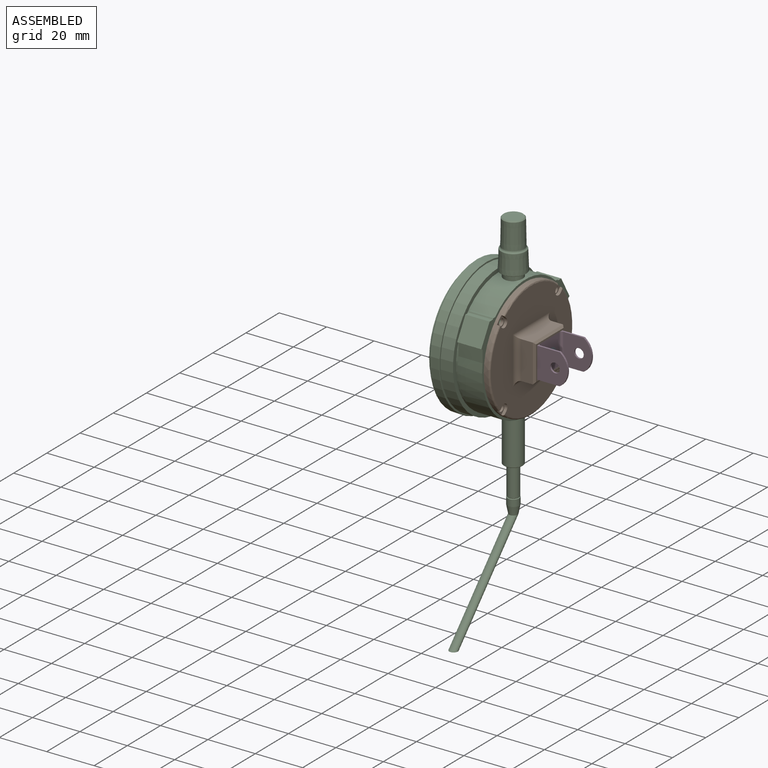
[diagram: assembled view]
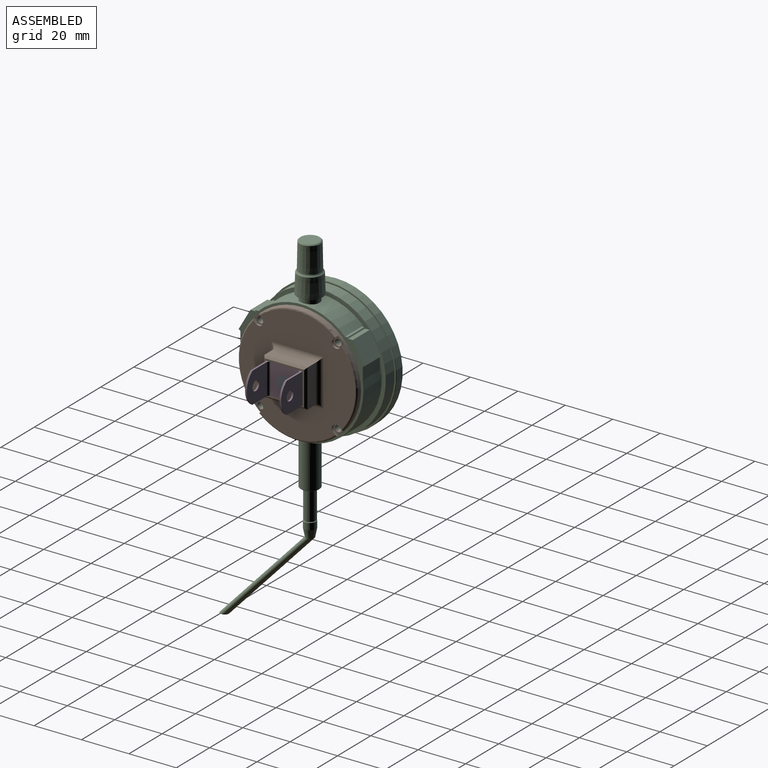
[diagram: assembled view, second angle]
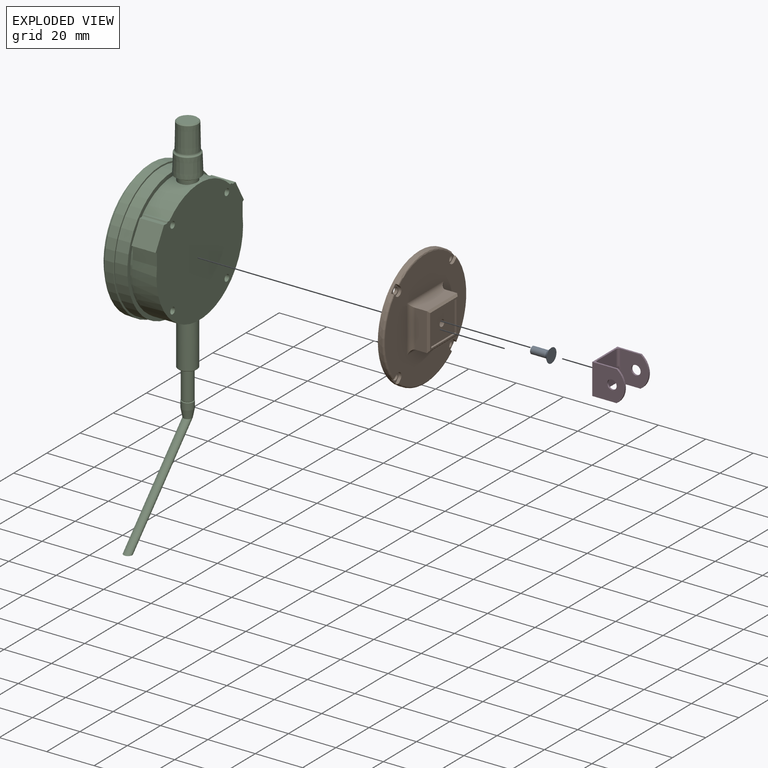
[diagram: exploded view]
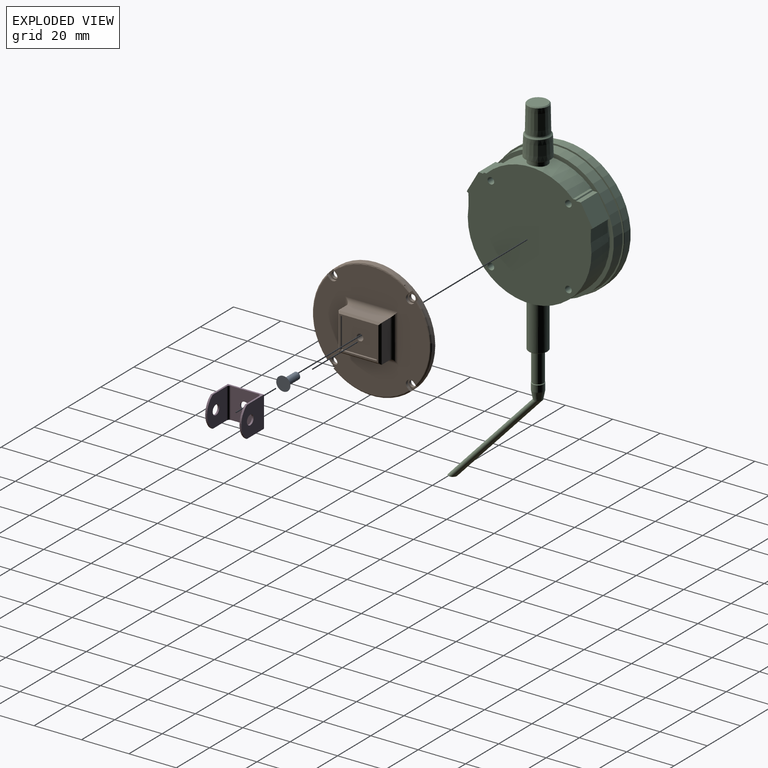
[diagram: exploded view, second angle]
ASSEMBLY  parts=4 mates=3
PART A: 4 faces, bbox 8x6x6 mm
  f0: plane 6x6mm, normal (1,0,0), area 28.3mm2, adj f3
  f1: plane 3x3mm, normal (-1,0,0), area 7.1mm2, adj f2
  f2: cylinder r=1.5mm len=6.5mm, axis (-1,0,0), area 61.3mm2, adj f1,f3
  f3: cone r=3mm half-angle=45deg, axis (1,0,0), area 30mm2, adj f0,f2
PART B: 46 faces, bbox 10.3x54.3x54.3 mm
  f0: plane 48.8x48.8mm, normal (1,0,0), area 1384.7mm2, adj f1,f2,f3,f4,f11,f12,f13,f15
  f1: torus R=24.4mm, axis (-1,0,0), area 38.7mm2, adj f0,f6,f13,f23
  f2: torus R=24.4mm, axis (-1,0,0), area 38.7mm2, adj f0,f6,f19,f25
  f3: torus R=24.4mm, axis (-1,0,0), area 38.7mm2, adj f0,f6,f17,f21
  f4: torus R=24.4mm, axis (-1,0,0), area 38.7mm2, adj f0,f6,f11,f16
  f5: plane 50.2x50.2mm, normal (-1,0,0), area 1948.4mm2, adj f6,f7,f8,f9,f10,f36
  f6: cylinder r=25.1mm len=50.2mm, axis (-1,0,0), area 276.3mm2, adj f1,f2,f3,f4,f5,f11,f13,f14
  f7: cylinder r=1.4mm len=2.8mm, axis (1,0,0), area 11.4mm2, adj f5,f22
  f8: cylinder r=1.4mm len=2.8mm, axis (1,0,0), area 11.4mm2, adj f5,f14
  f9: cylinder r=1.4mm len=2.8mm, axis (1,0,0), area 11.4mm2, adj f5,f26
  f10: cylinder r=1.4mm len=2.8mm, axis (1,0,0), area 11.4mm2, adj f5,f18
  f11: plane 1.35x1.35mm, normal (0,-0.71,-0.71), area 2.2mm2, adj f0,f4,f6,f12,f14
  f12: cylinder r=1.9mm len=3.24mm, axis (1,0,0), area 7.2mm2, adj f0,f11,f13,f14
  f13: plane 1.35x1.35mm, normal (0,0.71,0.71), area 2.2mm2, adj f0,f1,f6,f12,f14
  f14: plane 4.59x4.59mm, normal (1,0,0), area 6.9mm2, adj f6,f8,f11,f12,f13
  f15: cylinder r=1.9mm len=3.24mm, axis (1,0,0), area 7.2mm2, adj f0,f16,f17,f18
  f16: plane 1.35x1.35mm, normal (0,-0.71,0.71), area 2.2mm2, adj f0,f4,f6,f15,f18
  f17: plane 1.35x1.35mm, normal (0,0.71,-0.71), area 2.2mm2, adj f0,f3,f6,f15,f18
  f18: plane 4.59x4.59mm, normal (1,0,0), area 6.9mm2, adj f6,f10,f15,f16,f17
  f19: plane 1.35x1.35mm, normal (0,0.71,0.71), area 2.2mm2, adj f0,f2,f6,f20,f22
  f20: cylinder r=1.9mm len=3.24mm, axis (1,0,0), area 7.2mm2, adj f0,f19,f21,f22
  f21: plane 1.35x1.35mm, normal (0,-0.71,-0.71), area 2.2mm2, adj f0,f3,f6,f20,f22
  f22: plane 4.59x4.59mm, normal (1,0,0), area 6.9mm2, adj f6,f7,f19,f20,f21
  f23: plane 1.35x1.35mm, normal (0,-0.71,0.71), area 2.2mm2, adj f0,f1,f6,f24,f26
  f24: cylinder r=1.9mm len=3.24mm, axis (1,0,0), area 7.2mm2, adj f0,f23,f25,f26
  f25: plane 1.35x1.35mm, normal (0,0.71,-0.71), area 2.2mm2, adj f0,f2,f6,f24,f26
  f26: plane 4.59x4.59mm, normal (1,0,0), area 6.9mm2, adj f6,f9,f23,f24,f25
  f27: plane 15.2x0.8mm, normal (0,0,-1), area 12.2mm2, adj f28,f34,f35,f37
  f28: plane 13x0.8mm, normal (0,-1,0), area 10.4mm2, adj f27,f29,f35,f37
  f29: plane 15.2x0.8mm, normal (0,0,1), area 12.2mm2, adj f28,f34,f35,f37
  f30: plane 18.2x5mm, normal (0,0,-1), area 91mm2, adj f31,f33,f40,f45
  f31: plane 16x5mm, normal (0,1,0), area 80mm2, adj f30,f32,f38,f43
  f32: plane 18.2x5mm, normal (0,0,1), area 91mm2, adj f31,f33,f39,f42
  f33: plane 16x5mm, normal (0,-1,0), area 80mm2, adj f30,f32,f41,f44
  f34: plane 13x0.8mm, normal (0,1,0), area 10.4mm2, adj f27,f29,f35,f37
  f35: plane 16.6x14.4mm, normal (1,0,0), area 41.4mm2, adj f27,f28,f29,f34,f42,f43,f44,f45
  f36: cylinder r=1.4mm len=9.5mm, axis (-1,0,0), area 83.6mm2, adj f5,f37
  f37: plane 15.2x13mm, normal (1,0,0), area 191.4mm2, adj f27,f28,f29,f34,f36
  f38: cylinder r=2mm len=20mm, axis (0,0,-1), area 54.8mm2, adj f0,f31,f39,f40
  f39: cylinder r=2mm len=22.2mm, axis (0,1,0), area 61.7mm2, adj f0,f32,f38,f41
  f40: cylinder r=2mm len=22.2mm, axis (0,-1,0), area 61.7mm2, adj f0,f30,f38,f41
  f41: cylinder r=2mm len=20mm, axis (0,0,1), area 54.8mm2, adj f0,f33,f39,f40
  f42: plane 18.2x0.8mm, normal (0.71,0,0.71), area 19.7mm2, adj f32,f35,f43,f44
  f43: plane 16x0.8mm, normal (0.71,0.71,0), area 17.2mm2, adj f31,f35,f42,f45
  f44: plane 16x0.8mm, normal (0.71,-0.71,0), area 17.2mm2, adj f33,f35,f42,f45
  f45: plane 18.2x0.8mm, normal (0.71,0,-0.71), area 19.7mm2, adj f30,f35,f43,f44
PART C: 68 faces, bbox 24x70.4x152.3 mm
  f0: cylinder r=26mm len=52mm, axis (-1,0,0), area 155.2mm2, adj f1,f55
  f1: plane 53.15x52.2mm, normal (-1,0,0), area 62.8mm2, adj f0,f2,f25,f26,f27,f28,f29,f30
  f2: cylinder r=26.1mm len=52.2mm, axis (1,0,0), area 866.4mm2, adj f1,f3,f12,f25,f54
  f3: plane 53.15x52.2mm, normal (1,0,0), area 2161.8mm2, adj f2,f4,f6,f8,f10,f25,f26,f27
  f4: cylinder r=1.4mm len=3mm, axis (1,0,0), area 26.4mm2, adj f3,f5
  f5: plane 2.8x2.8mm, normal (1,0,0), area 6.2mm2, adj f4
  f6: cylinder r=1.4mm len=3mm, axis (1,0,0), area 26.4mm2, adj f3,f7
  f7: plane 2.8x2.8mm, normal (1,0,0), area 6.2mm2, adj f6
  f8: cylinder r=1.4mm len=3mm, axis (1,0,0), area 26.4mm2, adj f3,f9
  f9: plane 2.8x2.8mm, normal (1,0,0), area 6.2mm2, adj f8
  f10: cylinder r=1.4mm len=3mm, axis (1,0,0), area 26.4mm2, adj f3,f11
  f11: plane 2.8x2.8mm, normal (1,0,0), area 6.2mm2, adj f10
  f12: cylinder r=4mm len=19.1mm, axis (0,0,1), area 480mm2, adj f2,f13
  f13: cone r=4mm half-angle=45deg, axis (0,0,1), area 6.9mm2, adj f12,f14
  f14: plane 7.6x7.6mm, normal (0,0,-1), area 27.3mm2, adj f13,f15
  f15: cylinder r=2.4mm len=12.3mm, axis (0,0,1), area 185.5mm2, adj f14,f16
  f16: cone r=2.4mm half-angle=45deg, axis (0,0,1), area 4.1mm2, adj f15,f17
  f17: plane 4.6x4.6mm, normal (0,0,1), area 1.4mm2, adj f16,f18
  f18: cone r=2.5mm half-angle=45deg, axis (0,0,-1), area 4.3mm2, adj f17,f19
  f19: cylinder r=2.5mm len=5mm, axis (0,0,1), area 44mm2, adj f18,f20
  f20: cone r=1.8mm half-angle=11deg, axis (0,0,1), area 49.5mm2, adj f19,f21
  f21: bspline ~43.24x38.46mm, area 519.5mm2, adj f20,f22
  f22: plane 4.1x4.1mm, normal (0,0,-1), area 5.1mm2, adj f21,f23
  f23: bspline ~41.11x38.46mm, area 366.2mm2, adj f22,f24
  f24: sphere r=1.5mm, area 6.6mm2, adj f23
  f25: plane 10.2x5.2mm, normal (0,1,0), area 53mm2, adj f1,f2,f3,f26
  f26: plane 10.2x0.76mm, normal (0,0.5,-0.87), area 8.9mm2, adj f1,f3,f25,f27
  f27: plane 10.2x8.66mm, normal (0,0.87,0.5), area 102mm2, adj f1,f3,f26,f28
  f28: plane 10.2x1.97mm, normal (0,-0.01,1), area 20.1mm2, adj f1,f3,f27,f29
  f29: plane 10.2x0.46mm, normal (0,0.87,0.5), area 5.5mm2, adj f1,f3,f28,f30
  f30: plane 10.2x1.08mm, normal (0,-0.01,1), area 11mm2, adj f1,f3,f29,f31
  f31: cylinder r=26.1mm len=36.51mm, axis (1,0,0), area 363.4mm2, adj f1,f3,f30,f32,f33,f34,f47,f48
  f32: cone r=3.08mm half-angle=82.2deg, axis (0,0,1), area 0mm2, adj f31,f33
  f33: revolved ~3.87x0.54mm, area 0.2mm2, adj f31,f32,f34
  f34: cylinder r=4mm len=8mm, axis (0,0,1), area 47.6mm2, adj f31,f33,f35,f48
  f35: plane 9x9mm, normal (0,0,-1), area 13.4mm2, adj f34,f36
  f36: cylinder r=4.5mm len=9mm, axis (0,0,1), area 2.8mm2, adj f35,f37
  f37: plane 9.2x9.2mm, normal (0,0,-1), area 2.9mm2, adj f36,f38
  f38: cone r=5.38mm half-angle=60deg, axis (0,0,1), area 28.1mm2, adj f37,f39
  f39: torus R=5.35mm, axis (0,0,1), area 1.7mm2, adj f38,f40
  f40: plane 10.9x10.9mm, normal (0,0,-1), area 1.7mm2, adj f39,f41
  f41: cone r=5.45mm half-angle=2deg, axis (0,0,-1), area 274.7mm2, adj f40,f42
  f42: torus R=4.86mm, axis (0,0,1), area 9.2mm2, adj f41,f43
  f43: torus R=5.57mm, axis (0,0,1), area 29.5mm2, adj f42,f44
  f44: cone r=4.58mm half-angle=1deg, axis (0,0,-1), area 301.3mm2, adj f43,f45
  f45: cone r=4.39mm half-angle=45deg, axis (0,0,-1), area 14.9mm2, adj f44,f46
  f46: plane 7.97x7.97mm, normal (0,0,1), area 49.9mm2, adj f45
  f47: cone r=3.08mm half-angle=82.2deg, axis (0,0,1), area 0mm2, adj f31,f48
  f48: revolved ~3.87x0.54mm, area 0.2mm2, adj f31,f34,f47
  f49: plane 10.2x1.08mm, normal (0,0.01,1), area 11mm2, adj f1,f3,f31,f50
  f50: plane 10.2x0.46mm, normal (0,-0.87,0.5), area 5.5mm2, adj f1,f3,f49,f51
  f51: plane 10.2x1.97mm, normal (0,0.01,1), area 20.1mm2, adj f1,f3,f50,f52
  f52: plane 10.2x8.66mm, normal (0,-0.87,0.5), area 102mm2, adj f1,f3,f51,f53
  f53: plane 10.2x0.76mm, normal (0,-0.5,-0.87), area 8.9mm2, adj f1,f3,f52,f54
  f54: plane 10.2x5.2mm, normal (0,-1,0), area 53mm2, adj f1,f2,f3,f53
  f55: plane 55.41x55.41mm, normal (1,0,0), area 287.6mm2, adj f0,f56
  f56: cone r=27.7mm half-angle=1deg, axis (-1,0,0), area 907.4mm2, adj f55,f57
  f57: plane 56.8x56.8mm, normal (1,0,0), area 107mm2, adj f56,f58
  f58: cone r=28.4mm half-angle=45.5deg, axis (-1,0,0), area 24.7mm2, adj f57,f59
  f59: cone r=28.36mm half-angle=2deg, axis (1,0,0), area 704.5mm2, adj f58,f60
  f60: cone r=27.95mm half-angle=45deg, axis (1,0,0), area 103.2mm2, adj f59,f61
  f61: torus R=27.59mm, axis (-1,0,0), area 68.5mm2, adj f60,f62
  f62: plane 55.19x55.19mm, normal (-1,0,0), area 165.5mm2, adj f61,f63
  f63: cone r=26.32mm half-angle=15deg, axis (1,0,0), area 193.9mm2, adj f62,f64
  f64: torus R=26.22mm, axis (-1,0,0), area 21.6mm2, adj f63,f65
  f65: plane 52.45x52.45mm, normal (-1,0,0), area 69.2mm2, adj f64,f66
  f66: cylinder r=25.8mm len=51.6mm, axis (-1,0,0), area 61.2mm2, adj f65,f67
  f67: plane 51.61x51.61mm, normal (-1,0,0), area 2091.4mm2, adj f66
PART D: 15 faces, bbox 13.7x15.2x13 mm
  f0: plane 13x11.95mm, normal (0,1,0), area 129.6mm2, adj f4,f7,f10,f12,f13
  f1: plane 13x11.95mm, normal (0,-1,0), area 129.6mm2, adj f4,f7,f9,f11,f14
  f2: plane 13.7x13mm, normal (0,1,0), area 152.4mm2, adj f4,f6,f7,f9,f11
  f3: plane 13.7x13mm, normal (0,-1,0), area 152.4mm2, adj f4,f6,f7,f10,f12
  f4: plane 15.2x10.3mm, normal (0,0,1), area 26.2mm2, adj f0,f1,f2,f3,f5,f6,f9,f10
  f5: plane 13x11.7mm, normal (1,0,0), area 139.5mm2, adj f4,f7,f8,f13,f14
  f6: plane 15.2x13mm, normal (-1,0,0), area 185mm2, adj f2,f3,f4,f7,f8
  f7: plane 15.2x10.3mm, normal (0,0,-1), area 26.2mm2, adj f0,f1,f2,f3,f5,f6,f9,f10
  f8: cylinder r=2mm len=4mm, axis (1,0,0), area 9.4mm2, adj f5,f6
  f9: cylinder r=7.91mm len=13mm, axis (0,-1,0), area 11.4mm2, adj f1,f2,f4,f7
  f10: cylinder r=7.91mm len=13mm, axis (0,-1,0), area 11.4mm2, adj f0,f3,f4,f7
  f11: cylinder r=2mm len=4mm, axis (0,-1,0), area 9.4mm2, adj f1,f2
  f12: cylinder r=2mm len=4mm, axis (0,-1,0), area 9.4mm2, adj f0,f3
  f13: cylinder r=1mm len=13mm, axis (0,0,1), area 20.4mm2, adj f0,f4,f5,f7
  f14: cylinder r=1mm len=13mm, axis (0,0,1), area 20.4mm2, adj f1,f4,f5,f7
PLACE A t=(-0.25,0,0)mm
PLACE B at identity
PLACE C at identity
PLACE D at identity
MATE fastened D.f8 <-> B.f1  axis (-1,0,0) through (45.45,0,17.69)mm
MATE fastened B.f1 <-> C.f0  axis (-1,0,0) through (35.95,0,17.69)mm
MATE fastened A.f2 <-> B.f1  axis (-1,0,0) through (45.45,0,17.69)mm
